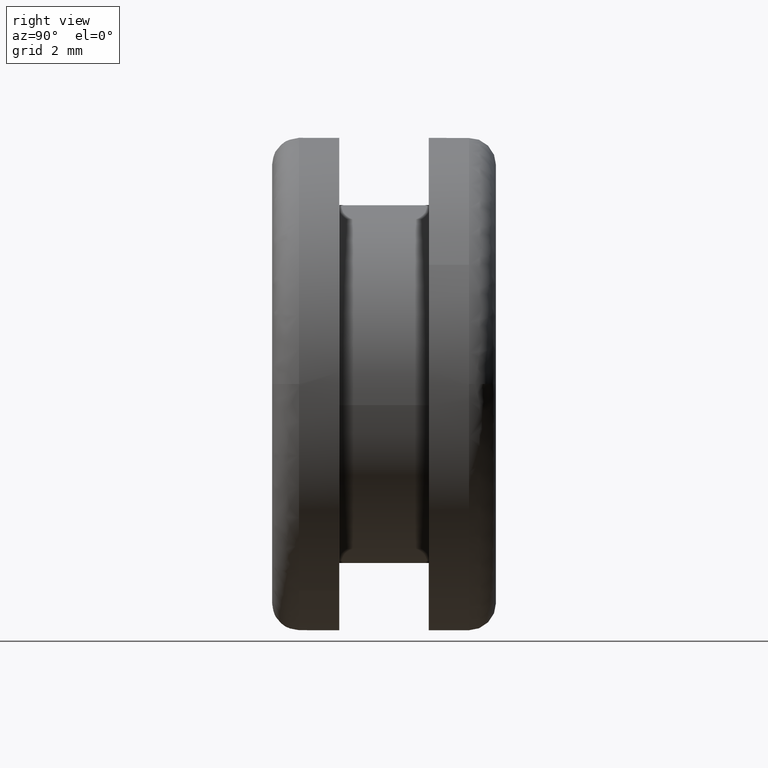
[diagram: clean part render]
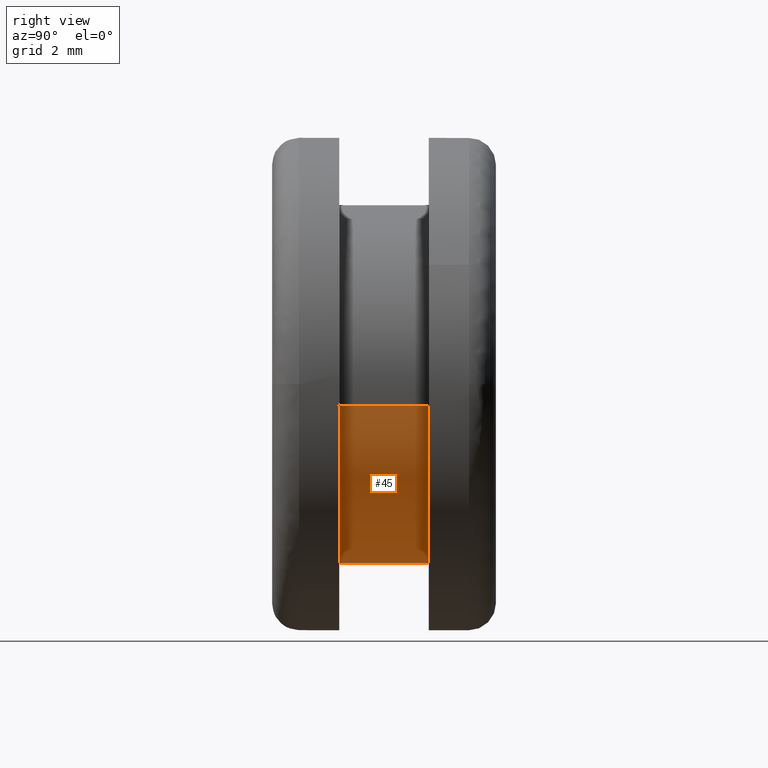
[diagram: same view with one face highlighted and labeled with its STEP entity id]
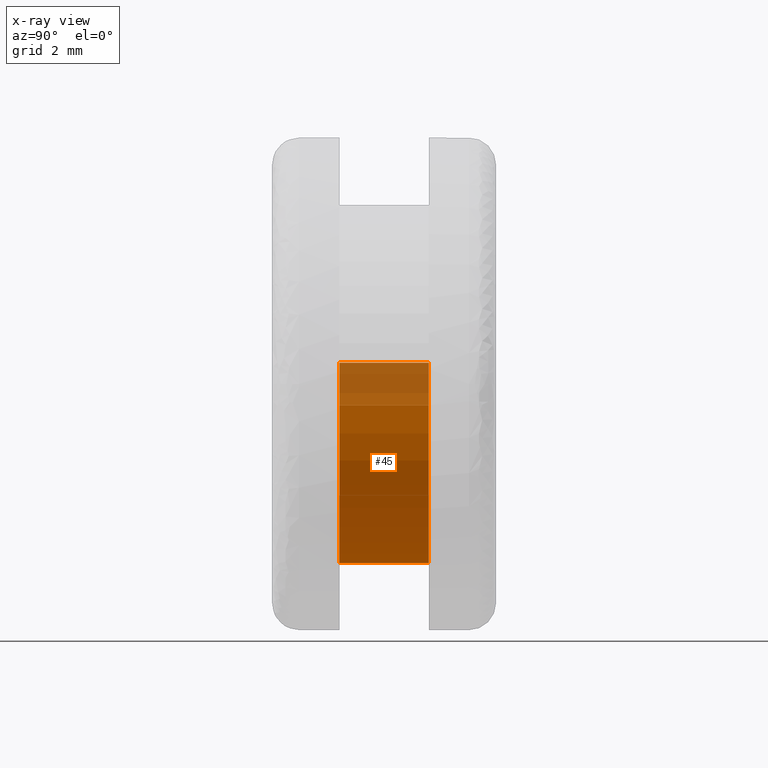
[diagram: x-ray of the same camera — body ghosted, the highlighted face saturated]
A machine part, right view. The second image highlights one B-rep face of the part: STEP entity #45.
The next image is the same camera in x-ray: the body ghosted, the highlighted face saturated — about 21% of this face is hidden behind the body in this view.
In plain terms, the highlighted cylindrical surface (partial cylindrical patch) has radius 4 mm, axis along (-0, 1, -0).
Its self-contained STEP definition (entity closure, byte-faithful):
#45=ADVANCED_FACE('',(#111),#110,.T.);
#110=CYLINDRICAL_SURFACE('',#252,4.00000000000E+000);
#111=FACE_OUTER_BOUND('',#253,.T.);
#249=CARTESIAN_POINT('',(-6.11467403465E-016,3.55000000000E+000,-7.18594435448E-015));
#250=DIRECTION('',(-8.09860076763E-016,1.00000000000E+000,-6.81326713039E-015));
#251=DIRECTION('',(-9.93009526364E-001,-1.24245592572E-029,1.18034234657E-001));
#252=AXIS2_PLACEMENT_3D('',#249,#250,#251);
#253=EDGE_LOOP('',(#416,#417,#418,#419,#420,#421));
#416=ORIENTED_EDGE('',*,*,#493,.F.);
#417=ORIENTED_EDGE('',*,*,#495,.F.);
#418=ORIENTED_EDGE('',*,*,#514,.T.);
#419=ORIENTED_EDGE('',*,*,#499,.T.);
#420=ORIENTED_EDGE('',*,*,#501,.T.);
#421=ORIENTED_EDGE('',*,*,#515,.F.);
#493=EDGE_CURVE('',#562,#563,#564,.T.);
#495=EDGE_CURVE('',#570,#562,#577,.T.);
#499=EDGE_CURVE('',#604,#605,#606,.T.);
#501=EDGE_CURVE('',#605,#612,#619,.T.);
#514=EDGE_CURVE('',#570,#604,#709,.T.);
#515=EDGE_CURVE('',#563,#612,#715,.T.);
#562=VERTEX_POINT('',#901);
#563=VERTEX_POINT('',#902);
#564=CIRCLE('',#906,4.00000000000E+000);
#570=VERTEX_POINT('',#907);
#577=CIRCLE('',#915,4.00000000000E+000);
#604=VERTEX_POINT('',#931);
#605=VERTEX_POINT('',#932);
#606=CIRCLE('',#936,4.00000000000E+000);
#612=VERTEX_POINT('',#937);
#619=CIRCLE('',#945,4.00000000000E+000);
#709=(BOUNDED_CURVE() B_SPLINE_CURVE(1,(#1006,#1007),.UNSPECIFIED.,.F.,.F.) B_SPLINE_CURVE_WITH_KNOTS((2,2),(8.33333134656E-002,9.16666653270E-001),.UNSPECIFIED.) CURVE() GEOMETRIC_REPRESENTATION_ITEM() RATIONAL_B_SPLINE_CURVE((1.00000000000E+000,1.00000000000E+000)) REPRESENTATION_ITEM('') );
#715=(BOUNDED_CURVE() B_SPLINE_CURVE(1,(#1008,#1009),.UNSPECIFIED.,.F.,.F.) B_SPLINE_CURVE_WITH_KNOTS((2,2),(8.33333333335E-002,9.16666666667E-001),.UNSPECIFIED.) CURVE() GEOMETRIC_REPRESENTATION_ITEM() RATIONAL_B_SPLINE_CURVE((7.50000000000E-001,7.50000000000E-001)) REPRESENTATION_ITEM('') );
#901=CARTESIAN_POINT('',(1.11022302463E-016,1.50000000000E+000,-4.00000000000E+000));
#902=CARTESIAN_POINT('',(3.97195644383E+000,1.50000000000E+000,-4.72823443060E-001));
#903=CARTESIAN_POINT('',(1.05604414102E-012,1.50000000000E+000,2.32214247831E-012));
#904=DIRECTION('',(1.82452857553E-014,-1.00000000000E+000,1.21516374572E-013));
#905=DIRECTION('',(-2.63650212773E-013,-1.21516374572E-013,-1.00000000000E+000));
#906=AXIS2_PLACEMENT_3D('',#903,#904,#905);
#907=CARTESIAN_POINT('',(-3.97203820494E+000,1.50000000000E+000,4.72136101655E-001));
#912=CARTESIAN_POINT('',(1.05604414102E-012,1.50000000000E+000,2.32214247831E-012));
#913=DIRECTION('',(1.82452857553E-014,-1.00000000000E+000,1.21516374572E-013));
#914=DIRECTION('',(-2.63650212773E-013,-1.21516374572E-013,-1.00000000000E+000));
#915=AXIS2_PLACEMENT_3D('',#912,#913,#914);
#931=CARTESIAN_POINT('',(-3.97203820494E+000,3.50000000000E+000,4.72136101655E-001));
#932=CARTESIAN_POINT('',(-1.33226762955E-015,3.50000000000E+000,-4.00000000000E+000));
#933=CARTESIAN_POINT('',(1.02895469922E-012,3.50000000000E+000,2.26307861340E-012));
#934=DIRECTION('',(-1.07402907431E-016,-1.00000000000E+000,2.85882782048E-015));
#935=DIRECTION('',(-2.57210919230E-013,-2.85882782048E-015,-1.00000000000E+000));
#936=AXIS2_PLACEMENT_3D('',#933,#934,#935);
#937=CARTESIAN_POINT('',(3.97195644383E+000,3.50000000000E+000,-4.72823443060E-001));
#942=CARTESIAN_POINT('',(1.02895469922E-012,3.50000000000E+000,2.26307861340E-012));
#943=DIRECTION('',(-1.07402907431E-016,-1.00000000000E+000,2.85882782048E-015));
#944=DIRECTION('',(-2.57210919230E-013,-2.85882782048E-015,-1.00000000000E+000));
#945=AXIS2_PLACEMENT_3D('',#942,#943,#944);
#1006=CARTESIAN_POINT('',(-3.97203810545E+000,1.49999995232E+000,4.72136938627E-001));
#1007=CARTESIAN_POINT('',(-3.97203810545E+000,3.49999996785E+000,4.72136938627E-001));
#1008=CARTESIAN_POINT('',(3.97203810545E+000,1.50000000000E+000,-4.72136938627E-001));
#1009=CARTESIAN_POINT('',(3.97203810545E+000,3.50000000000E+000,-4.72136938627E-001));